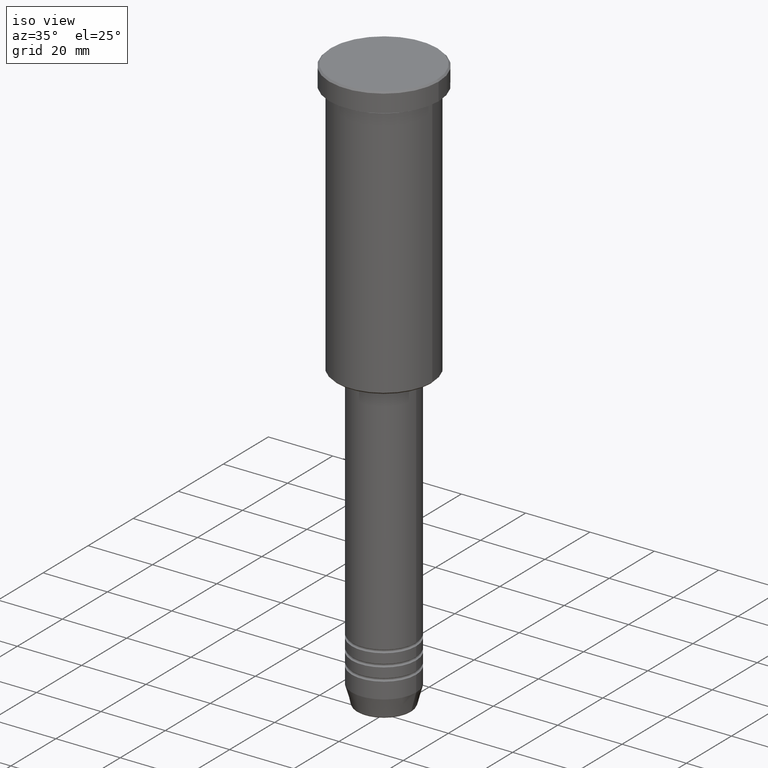
[diagram: clean part render]
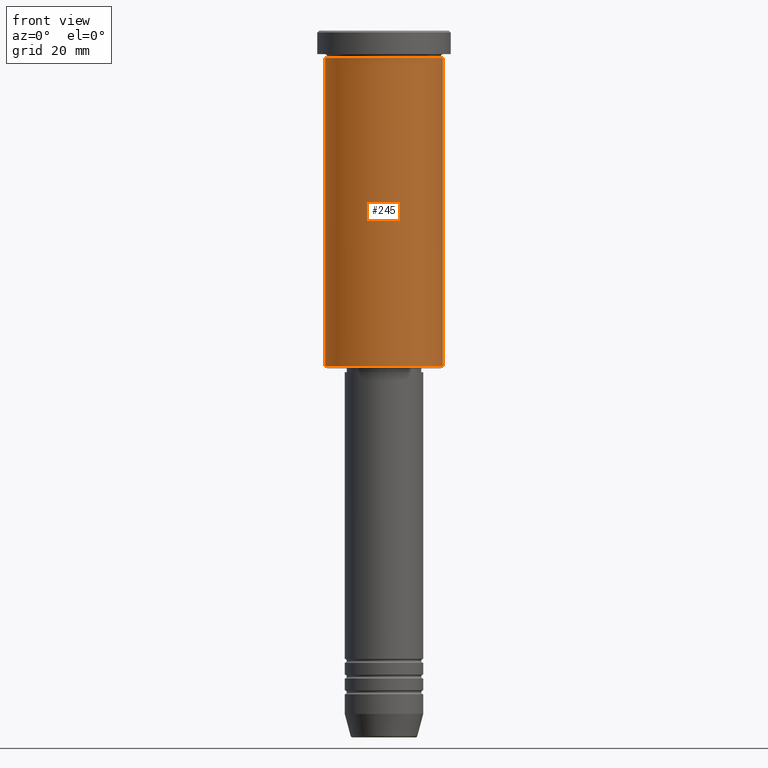
[diagram: tour spotlight — one face highlighted and labeled with its STEP entity id]
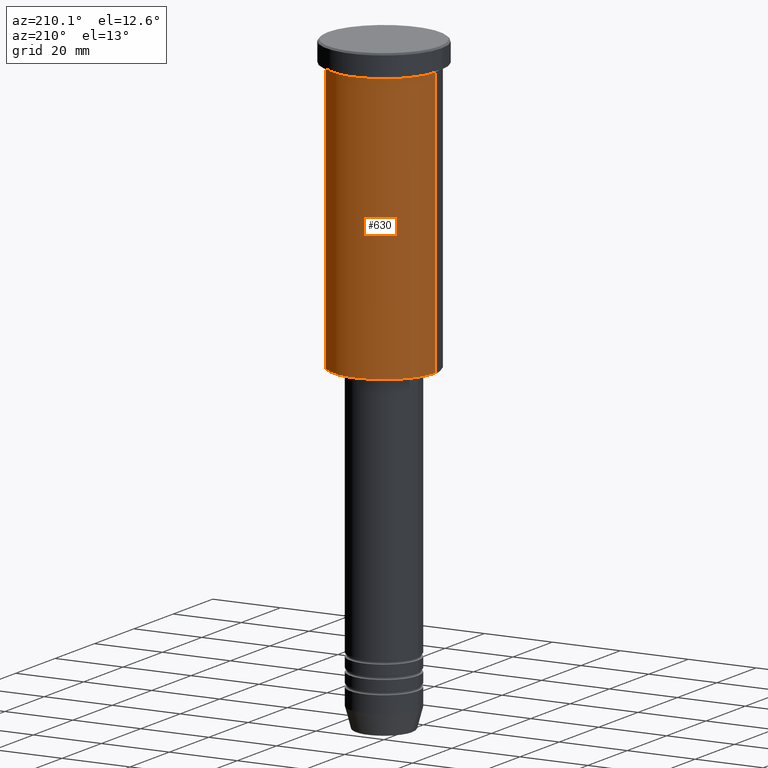
[diagram: tour spotlight — one face highlighted and labeled with its STEP entity id]
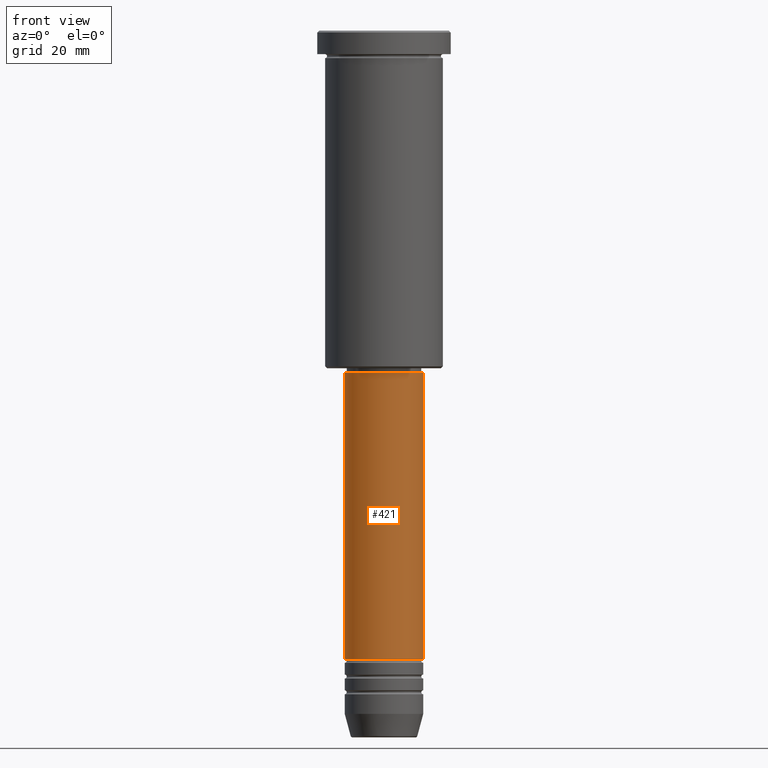
[diagram: tour spotlight — one face highlighted and labeled with its STEP entity id]
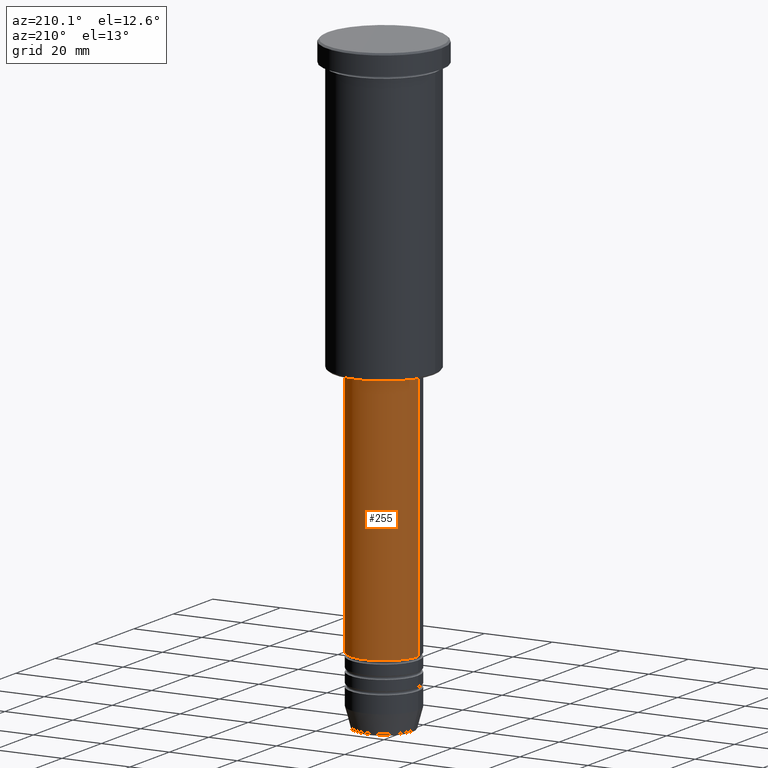
[diagram: tour spotlight — one face highlighted and labeled with its STEP entity id]
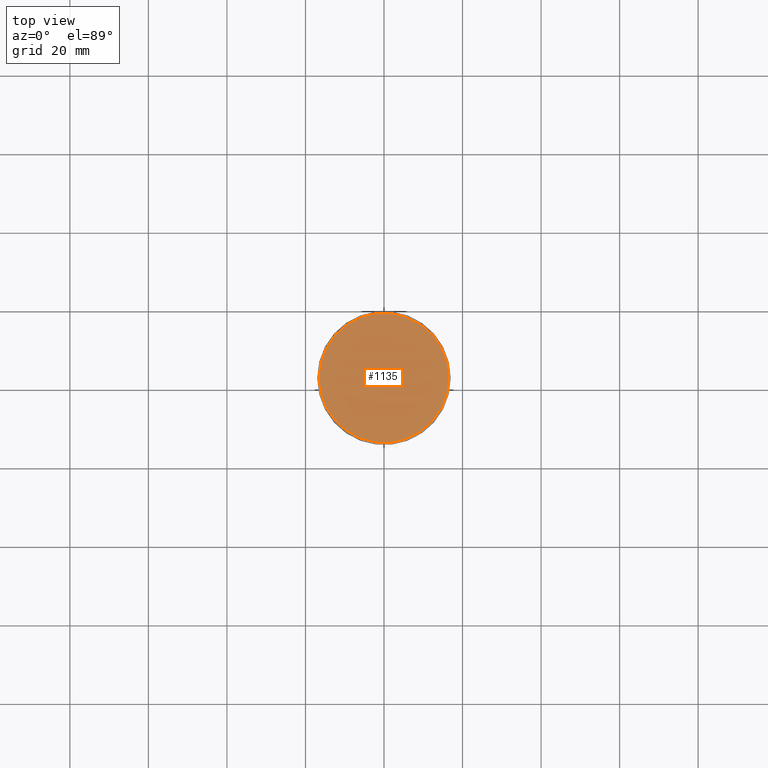
[diagram: tour spotlight — one face highlighted and labeled with its STEP entity id]
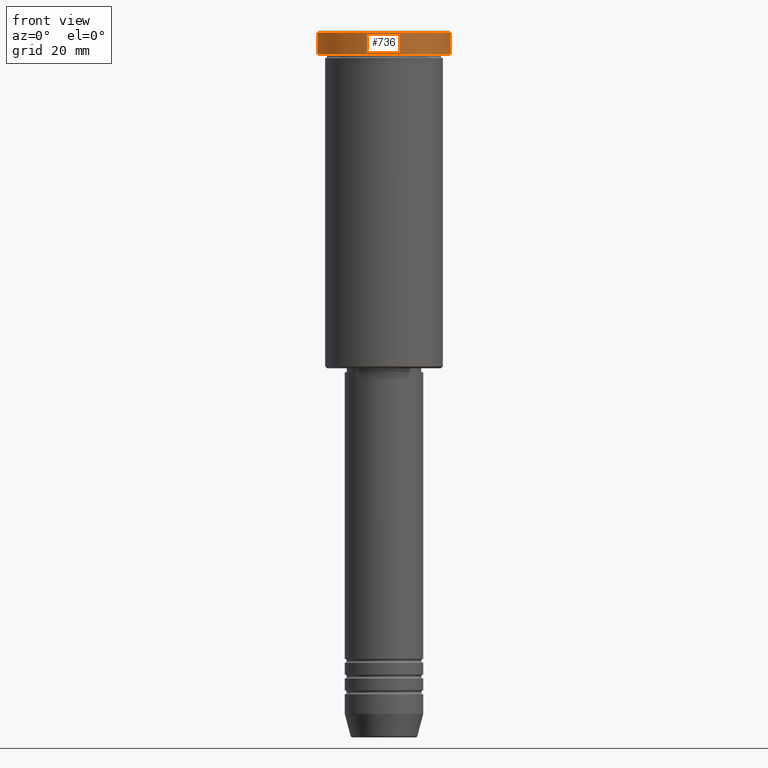
[diagram: tour spotlight — one face highlighted and labeled with its STEP entity id]
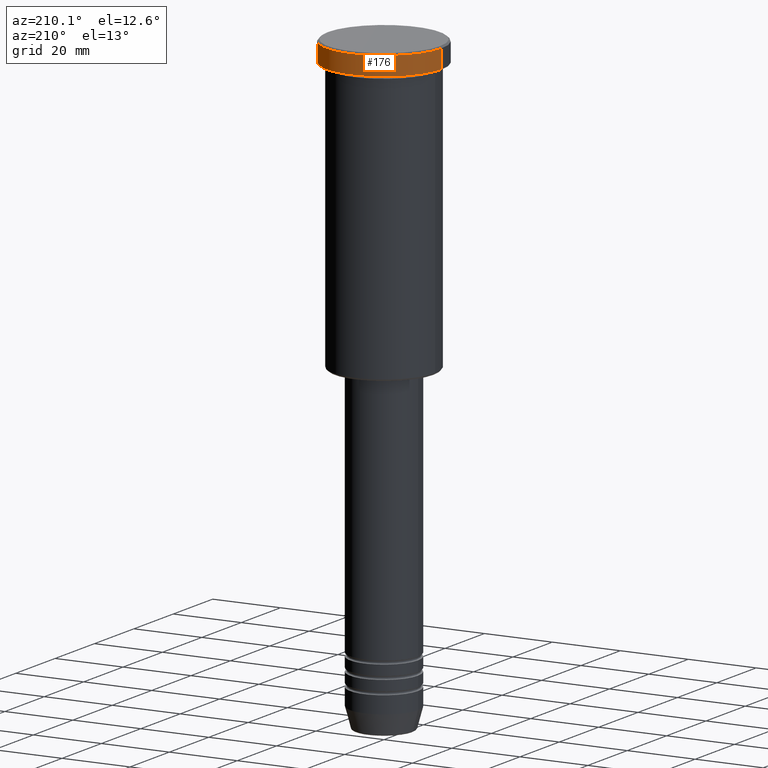
[diagram: tour spotlight — one face highlighted and labeled with its STEP entity id]
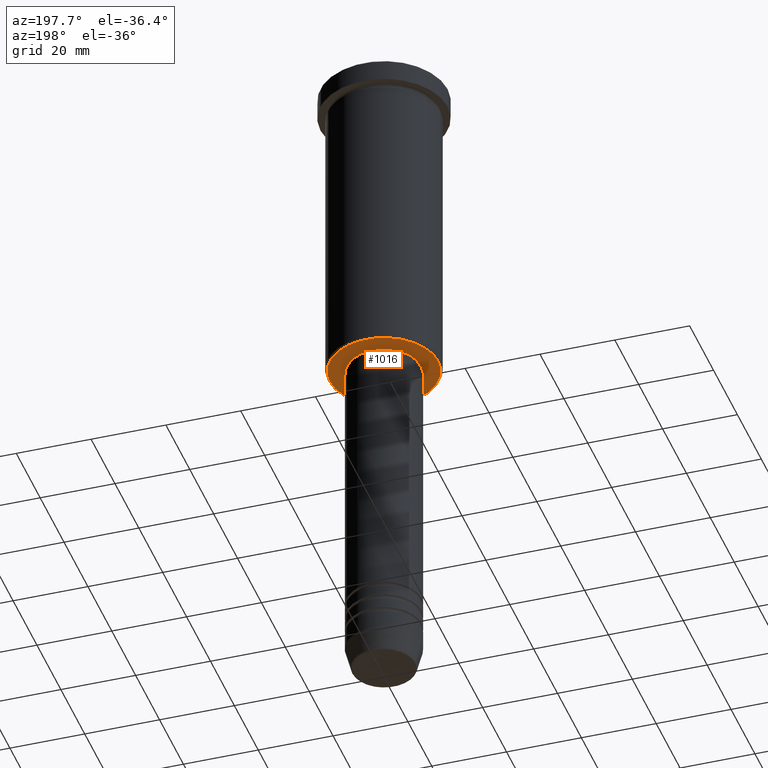
[diagram: tour spotlight — one face highlighted and labeled with its STEP entity id]
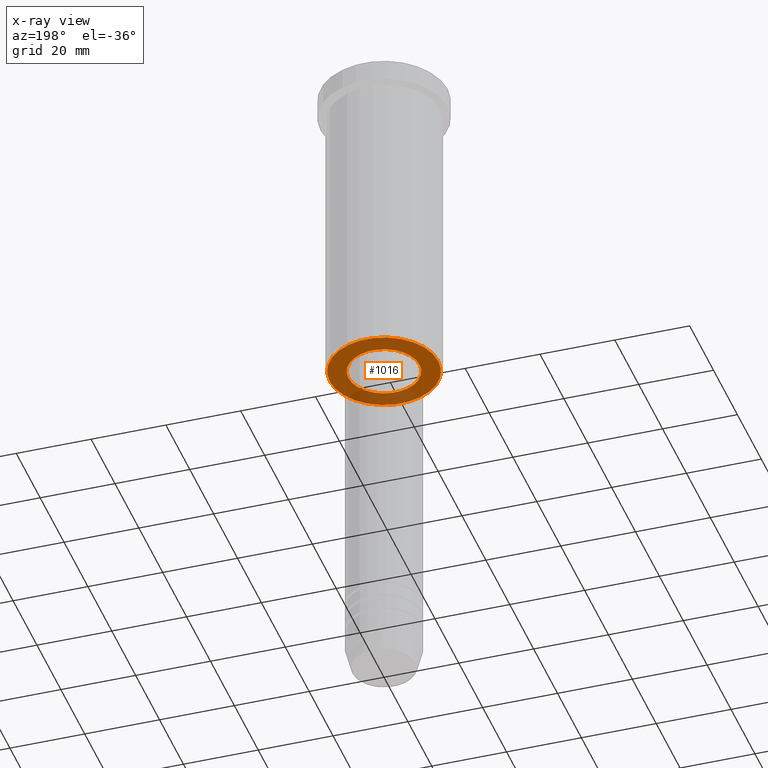
[diagram: x-ray of the same camera — body ghosted, this tour face saturated]
A machine part: a face-by-face anatomy tour. The part has 43 B-rep faces; the first image is the clean iso view, then the 8 largest visible faces are spotlighted one at a time (largest first), each with its STEP entity span.

Face 1 — front view, entity #245. In plain terms, the highlighted cylindrical surface (partial cylindrical patch) has radius 15 mm, axis along (-0, -0, 1).
Definition (entity closure, byte-faithful):
#47 = VERTEX_POINT ( 'NONE', #268 ) ;
#64 = FACE_OUTER_BOUND ( 'NONE', #892, .T. ) ;
#108 = DIRECTION ( 'NONE',  ( 1.000000000000000000, 0.000000000000000000, 0.000000000000000000 ) ) ;
#121 = DIRECTION ( 'NONE',  ( -0.000000000000000000, -0.000000000000000000, 1.000000000000000000 ) ) ;
#156 = VERTEX_POINT ( 'NONE', #426 ) ;
#161 = DIRECTION ( 'NONE',  ( -0.000000000000000000, -0.000000000000000000, 1.000000000000000000 ) ) ;
#202 = CARTESIAN_POINT ( 'NONE',  ( 15.00000000000000000, 0.000000000000000000, -85.49999999999998579 ) ) ;
#212 = AXIS2_PLACEMENT_3D ( 'NONE', #1048, #310, #572 ) ;
#220 = ORIENTED_EDGE ( 'NONE', *, *, #474, .F. ) ;
#245 = ADVANCED_FACE ( 'NONE', ( #64 ), #386, .T. ) ;
#246 = LINE ( 'NONE', #1069, #303 ) ;
#268 = CARTESIAN_POINT ( 'NONE',  ( -15.00000000000000000, 1.836970198721029589E-15, -85.49999999999998579 ) ) ;
#283 = VERTEX_POINT ( 'NONE', #202 ) ;
#303 = VECTOR ( 'NONE', #161, 1000.000000000000000 ) ;
#310 = DIRECTION ( 'NONE',  ( -0.000000000000000000, -0.000000000000000000, 1.000000000000000000 ) ) ;
#315 = ORIENTED_EDGE ( 'NONE', *, *, #954, .T. ) ;
#320 = AXIS2_PLACEMENT_3D ( 'NONE', #653, #770, #108 ) ;
#386 = CYLINDRICAL_SURFACE ( 'NONE', #320, 15.00000000000000000 ) ;
#388 = VECTOR ( 'NONE', #687, 1000.000000000000000 ) ;
#416 = VERTEX_POINT ( 'NONE', #849 ) ;
#426 = CARTESIAN_POINT ( 'NONE',  ( 15.00000000000000000, 0.000000000000000000, -6.999999999999995559 ) ) ;
#474 = EDGE_CURVE ( 'NONE', #416, #156, #1179, .T. ) ;
#480 = AXIS2_PLACEMENT_3D ( 'NONE', #575, #121, #1040 ) ;
#531 = ORIENTED_EDGE ( 'NONE', *, *, #1105, .T. ) ;
#572 = DIRECTION ( 'NONE',  ( -1.000000000000000000, 0.000000000000000000, 0.000000000000000000 ) ) ;
#575 = CARTESIAN_POINT ( 'NONE',  ( 0.000000000000000000, 0.000000000000000000, -6.999999999999995559 ) ) ;
#584 = EDGE_CURVE ( 'NONE', #47, #416, #246, .T. ) ;
#653 = CARTESIAN_POINT ( 'NONE',  ( 0.000000000000000000, 0.000000000000000000, 0.000000000000000000 ) ) ;
#687 = DIRECTION ( 'NONE',  ( -0.000000000000000000, -0.000000000000000000, 1.000000000000000000 ) ) ;
#770 = DIRECTION ( 'NONE',  ( -0.000000000000000000, -0.000000000000000000, 1.000000000000000000 ) ) ;
#823 = CIRCLE ( 'NONE', #212, 15.00000000000000000 ) ;
#849 = CARTESIAN_POINT ( 'NONE',  ( -15.00000000000000000, 1.836970198721029589E-15, -6.999999999999995559 ) ) ;
#871 = LINE ( 'NONE', #1132, #388 ) ;
#872 = ORIENTED_EDGE ( 'NONE', *, *, #584, .F. ) ;
#892 = EDGE_LOOP ( 'NONE', ( #872, #315, #531, #220 ) ) ;
#954 = EDGE_CURVE ( 'NONE', #47, #283, #823, .T. ) ;
#1040 = DIRECTION ( 'NONE',  ( 1.000000000000000000, 0.000000000000000000, 0.000000000000000000 ) ) ;
#1048 = CARTESIAN_POINT ( 'NONE',  ( 0.000000000000000000, 0.000000000000000000, -85.49999999999998579 ) ) ;
#1069 = CARTESIAN_POINT ( 'NONE',  ( -15.00000000000000000, 1.836970198721029589E-15, 0.000000000000000000 ) ) ;
#1105 = EDGE_CURVE ( 'NONE', #283, #156, #871, .T. ) ;
#1132 = CARTESIAN_POINT ( 'NONE',  ( 15.00000000000000000, 0.000000000000000000, 0.000000000000000000 ) ) ;
#1179 = CIRCLE ( 'NONE', #480, 15.00000000000000000 ) ;

Face 2 — auxiliary view, entity #630. In plain terms, the highlighted cylindrical surface (partial cylindrical patch) has radius 15 mm, axis along (-0, -0, 1).
Definition (entity closure, byte-faithful):
#47 = VERTEX_POINT ( 'NONE', #268 ) ;
#100 = AXIS2_PLACEMENT_3D ( 'NONE', #1081, #982, #878 ) ;
#154 = DIRECTION ( 'NONE',  ( -1.000000000000000000, 0.000000000000000000, 0.000000000000000000 ) ) ;
#156 = VERTEX_POINT ( 'NONE', #426 ) ;
#161 = DIRECTION ( 'NONE',  ( -0.000000000000000000, -0.000000000000000000, 1.000000000000000000 ) ) ;
#186 = EDGE_LOOP ( 'NONE', ( #395, #1138, #882, #1029 ) ) ;
#199 = CARTESIAN_POINT ( 'NONE',  ( 0.000000000000000000, 0.000000000000000000, -6.999999999999995559 ) ) ;
#202 = CARTESIAN_POINT ( 'NONE',  ( 15.00000000000000000, 0.000000000000000000, -85.49999999999998579 ) ) ;
#244 = EDGE_CURVE ( 'NONE', #283, #47, #606, .T. ) ;
#246 = LINE ( 'NONE', #1069, #303 ) ;
#248 = AXIS2_PLACEMENT_3D ( 'NONE', #1063, #972, #154 ) ;
#253 = EDGE_CURVE ( 'NONE', #156, #416, #400, .T. ) ;
#268 = CARTESIAN_POINT ( 'NONE',  ( -15.00000000000000000, 1.836970198721029589E-15, -85.49999999999998579 ) ) ;
#283 = VERTEX_POINT ( 'NONE', #202 ) ;
#303 = VECTOR ( 'NONE', #161, 1000.000000000000000 ) ;
#372 = DIRECTION ( 'NONE',  ( -0.000000000000000000, -0.000000000000000000, 1.000000000000000000 ) ) ;
#388 = VECTOR ( 'NONE', #687, 1000.000000000000000 ) ;
#395 = ORIENTED_EDGE ( 'NONE', *, *, #244, .T. ) ;
#400 = CIRCLE ( 'NONE', #904, 15.00000000000000000 ) ;
#416 = VERTEX_POINT ( 'NONE', #849 ) ;
#426 = CARTESIAN_POINT ( 'NONE',  ( 15.00000000000000000, 0.000000000000000000, -6.999999999999995559 ) ) ;
#561 = DIRECTION ( 'NONE',  ( 1.000000000000000000, 0.000000000000000000, 0.000000000000000000 ) ) ;
#584 = EDGE_CURVE ( 'NONE', #47, #416, #246, .T. ) ;
#606 = CIRCLE ( 'NONE', #248, 15.00000000000000000 ) ;
#630 = ADVANCED_FACE ( 'NONE', ( #891 ), #987, .T. ) ;
#687 = DIRECTION ( 'NONE',  ( -0.000000000000000000, -0.000000000000000000, 1.000000000000000000 ) ) ;
#849 = CARTESIAN_POINT ( 'NONE',  ( -15.00000000000000000, 1.836970198721029589E-15, -6.999999999999995559 ) ) ;
#871 = LINE ( 'NONE', #1132, #388 ) ;
#878 = DIRECTION ( 'NONE',  ( 1.000000000000000000, 0.000000000000000000, 0.000000000000000000 ) ) ;
#882 = ORIENTED_EDGE ( 'NONE', *, *, #253, .F. ) ;
#891 = FACE_OUTER_BOUND ( 'NONE', #186, .T. ) ;
#904 = AXIS2_PLACEMENT_3D ( 'NONE', #199, #372, #561 ) ;
#972 = DIRECTION ( 'NONE',  ( -0.000000000000000000, -0.000000000000000000, 1.000000000000000000 ) ) ;
#982 = DIRECTION ( 'NONE',  ( -0.000000000000000000, -0.000000000000000000, 1.000000000000000000 ) ) ;
#987 = CYLINDRICAL_SURFACE ( 'NONE', #100, 15.00000000000000000 ) ;
#1029 = ORIENTED_EDGE ( 'NONE', *, *, #1105, .F. ) ;
#1063 = CARTESIAN_POINT ( 'NONE',  ( 0.000000000000000000, 0.000000000000000000, -85.49999999999998579 ) ) ;
#1069 = CARTESIAN_POINT ( 'NONE',  ( -15.00000000000000000, 1.836970198721029589E-15, 0.000000000000000000 ) ) ;
#1081 = CARTESIAN_POINT ( 'NONE',  ( 0.000000000000000000, 0.000000000000000000, 0.000000000000000000 ) ) ;
#1105 = EDGE_CURVE ( 'NONE', #283, #156, #871, .T. ) ;
#1132 = CARTESIAN_POINT ( 'NONE',  ( 15.00000000000000000, 0.000000000000000000, 0.000000000000000000 ) ) ;
#1138 = ORIENTED_EDGE ( 'NONE', *, *, #584, .T. ) ;

Face 3 — front view, entity #421. In plain terms, the highlighted cylindrical surface (partial cylindrical patch) has radius 10 mm, axis along (-0, -0, 1).
Definition (entity closure, byte-faithful):
#29 = CYLINDRICAL_SURFACE ( 'NONE', #265, 10.00000000000000000 ) ;
#45 = LINE ( 'NONE', #858, #664 ) ;
#75 = AXIS2_PLACEMENT_3D ( 'NONE', #1005, #185, #873 ) ;
#88 = VERTEX_POINT ( 'NONE', #109 ) ;
#109 = CARTESIAN_POINT ( 'NONE',  ( 9.999999999999998224, 0.000000000000000000, -87.00000000000002842 ) ) ;
#132 = DIRECTION ( 'NONE',  ( -0.000000000000000000, -0.000000000000000000, 1.000000000000000000 ) ) ;
#142 = EDGE_LOOP ( 'NONE', ( #706, #433, #497, #746 ) ) ;
#185 = DIRECTION ( 'NONE',  ( -0.000000000000000000, -0.000000000000000000, 1.000000000000000000 ) ) ;
#265 = AXIS2_PLACEMENT_3D ( 'NONE', #953, #132, #590 ) ;
#389 = EDGE_CURVE ( 'NONE', #1051, #88, #1104, .T. ) ;
#394 = VERTEX_POINT ( 'NONE', #748 ) ;
#397 = DIRECTION ( 'NONE',  ( 1.000000000000000000, 0.000000000000000000, 0.000000000000000000 ) ) ;
#413 = FACE_OUTER_BOUND ( 'NONE', #142, .T. ) ;
#421 = ADVANCED_FACE ( 'NONE', ( #413 ), #29, .T. ) ;
#433 = ORIENTED_EDGE ( 'NONE', *, *, #456, .T. ) ;
#456 = EDGE_CURVE ( 'NONE', #733, #394, #939, .T. ) ;
#475 = LINE ( 'NONE', #1129, #866 ) ;
#481 = CARTESIAN_POINT ( 'NONE',  ( -9.999999999999998224, 1.224646799147353256E-15, -87.00000000000002842 ) ) ;
#488 = DIRECTION ( 'NONE',  ( -0.000000000000000000, -0.000000000000000000, 1.000000000000000000 ) ) ;
#489 = EDGE_CURVE ( 'NONE', #394, #88, #45, .T. ) ;
#497 = ORIENTED_EDGE ( 'NONE', *, *, #489, .T. ) ;
#524 = AXIS2_PLACEMENT_3D ( 'NONE', #1130, #1028, #397 ) ;
#590 = DIRECTION ( 'NONE',  ( 1.000000000000000000, 0.000000000000000000, 0.000000000000000000 ) ) ;
#640 = CARTESIAN_POINT ( 'NONE',  ( -10.00000000000000178, 1.224646799147353454E-15, -160.0000000000000000 ) ) ;
#661 = DIRECTION ( 'NONE',  ( -0.000000000000000000, -0.000000000000000000, 1.000000000000000000 ) ) ;
#664 = VECTOR ( 'NONE', #488, 1000.000000000000000 ) ;
#706 = ORIENTED_EDGE ( 'NONE', *, *, #896, .F. ) ;
#733 = VERTEX_POINT ( 'NONE', #640 ) ;
#746 = ORIENTED_EDGE ( 'NONE', *, *, #389, .F. ) ;
#748 = CARTESIAN_POINT ( 'NONE',  ( 10.00000000000000178, 0.000000000000000000, -160.0000000000000000 ) ) ;
#858 = CARTESIAN_POINT ( 'NONE',  ( 10.00000000000000000, 0.000000000000000000, 0.000000000000000000 ) ) ;
#866 = VECTOR ( 'NONE', #661, 1000.000000000000000 ) ;
#873 = DIRECTION ( 'NONE',  ( 1.000000000000000000, 0.000000000000000000, 0.000000000000000000 ) ) ;
#896 = EDGE_CURVE ( 'NONE', #733, #1051, #475, .T. ) ;
#939 = CIRCLE ( 'NONE', #524, 10.00000000000000178 ) ;
#953 = CARTESIAN_POINT ( 'NONE',  ( 0.000000000000000000, 0.000000000000000000, 0.000000000000000000 ) ) ;
#1005 = CARTESIAN_POINT ( 'NONE',  ( 0.000000000000000000, 0.000000000000000000, -87.00000000000002842 ) ) ;
#1028 = DIRECTION ( 'NONE',  ( -0.000000000000000000, -0.000000000000000000, 1.000000000000000000 ) ) ;
#1051 = VERTEX_POINT ( 'NONE', #481 ) ;
#1104 = CIRCLE ( 'NONE', #75, 9.999999999999998224 ) ;
#1129 = CARTESIAN_POINT ( 'NONE',  ( -10.00000000000000000, 1.224646799147353256E-15, 0.000000000000000000 ) ) ;
#1130 = CARTESIAN_POINT ( 'NONE',  ( 0.000000000000000000, 0.000000000000000000, -160.0000000000000000 ) ) ;

Face 4 — auxiliary view, entity #255. In plain terms, the highlighted cylindrical surface (partial cylindrical patch) has radius 10 mm, axis along (-0, -0, 1).
Definition (entity closure, byte-faithful):
#5 = CARTESIAN_POINT ( 'NONE',  ( 0.000000000000000000, 0.000000000000000000, 0.000000000000000000 ) ) ;
#45 = LINE ( 'NONE', #858, #664 ) ;
#88 = VERTEX_POINT ( 'NONE', #109 ) ;
#95 = ORIENTED_EDGE ( 'NONE', *, *, #295, .F. ) ;
#109 = CARTESIAN_POINT ( 'NONE',  ( 9.999999999999998224, 0.000000000000000000, -87.00000000000002842 ) ) ;
#136 = EDGE_CURVE ( 'NONE', #394, #733, #357, .T. ) ;
#164 = CARTESIAN_POINT ( 'NONE',  ( 0.000000000000000000, 0.000000000000000000, -160.0000000000000000 ) ) ;
#255 = ADVANCED_FACE ( 'NONE', ( #919 ), #932, .T. ) ;
#292 = CARTESIAN_POINT ( 'NONE',  ( 0.000000000000000000, 0.000000000000000000, -87.00000000000002842 ) ) ;
#295 = EDGE_CURVE ( 'NONE', #88, #1051, #500, .T. ) ;
#327 = ORIENTED_EDGE ( 'NONE', *, *, #896, .T. ) ;
#357 = CIRCLE ( 'NONE', #624, 10.00000000000000178 ) ;
#379 = ORIENTED_EDGE ( 'NONE', *, *, #136, .T. ) ;
#394 = VERTEX_POINT ( 'NONE', #748 ) ;
#472 = DIRECTION ( 'NONE',  ( -0.000000000000000000, -0.000000000000000000, 1.000000000000000000 ) ) ;
#475 = LINE ( 'NONE', #1129, #866 ) ;
#481 = CARTESIAN_POINT ( 'NONE',  ( -9.999999999999998224, 1.224646799147353256E-15, -87.00000000000002842 ) ) ;
#488 = DIRECTION ( 'NONE',  ( -0.000000000000000000, -0.000000000000000000, 1.000000000000000000 ) ) ;
#489 = EDGE_CURVE ( 'NONE', #394, #88, #45, .T. ) ;
#500 = CIRCLE ( 'NONE', #699, 9.999999999999998224 ) ;
#624 = AXIS2_PLACEMENT_3D ( 'NONE', #164, #1002, #1155 ) ;
#640 = CARTESIAN_POINT ( 'NONE',  ( -10.00000000000000178, 1.224646799147353454E-15, -160.0000000000000000 ) ) ;
#654 = DIRECTION ( 'NONE',  ( -0.000000000000000000, -0.000000000000000000, 1.000000000000000000 ) ) ;
#661 = DIRECTION ( 'NONE',  ( -0.000000000000000000, -0.000000000000000000, 1.000000000000000000 ) ) ;
#664 = VECTOR ( 'NONE', #488, 1000.000000000000000 ) ;
#683 = AXIS2_PLACEMENT_3D ( 'NONE', #5, #472, #1084 ) ;
#699 = AXIS2_PLACEMENT_3D ( 'NONE', #292, #654, #998 ) ;
#722 = EDGE_LOOP ( 'NONE', ( #379, #327, #95, #1041 ) ) ;
#733 = VERTEX_POINT ( 'NONE', #640 ) ;
#748 = CARTESIAN_POINT ( 'NONE',  ( 10.00000000000000178, 0.000000000000000000, -160.0000000000000000 ) ) ;
#858 = CARTESIAN_POINT ( 'NONE',  ( 10.00000000000000000, 0.000000000000000000, 0.000000000000000000 ) ) ;
#866 = VECTOR ( 'NONE', #661, 1000.000000000000000 ) ;
#896 = EDGE_CURVE ( 'NONE', #733, #1051, #475, .T. ) ;
#919 = FACE_OUTER_BOUND ( 'NONE', #722, .T. ) ;
#932 = CYLINDRICAL_SURFACE ( 'NONE', #683, 10.00000000000000000 ) ;
#998 = DIRECTION ( 'NONE',  ( 1.000000000000000000, 0.000000000000000000, 0.000000000000000000 ) ) ;
#1002 = DIRECTION ( 'NONE',  ( -0.000000000000000000, -0.000000000000000000, 1.000000000000000000 ) ) ;
#1041 = ORIENTED_EDGE ( 'NONE', *, *, #489, .F. ) ;
#1051 = VERTEX_POINT ( 'NONE', #481 ) ;
#1084 = DIRECTION ( 'NONE',  ( 1.000000000000000000, 0.000000000000000000, 0.000000000000000000 ) ) ;
#1129 = CARTESIAN_POINT ( 'NONE',  ( -10.00000000000000000, 1.224646799147353256E-15, 0.000000000000000000 ) ) ;
#1155 = DIRECTION ( 'NONE',  ( 1.000000000000000000, 0.000000000000000000, 0.000000000000000000 ) ) ;

Face 5 — top view, entity #1135. In plain terms, the highlighted planar face has unit normal (0, -0, 1).
Definition (entity closure, byte-faithful):
#46 = VERTEX_POINT ( 'NONE', #1088 ) ;
#77 = AXIS2_PLACEMENT_3D ( 'NONE', #467, #933, #276 ) ;
#115 = CARTESIAN_POINT ( 'NONE',  ( 0.000000000000000000, 0.000000000000000000, 0.000000000000000000 ) ) ;
#123 = VERTEX_POINT ( 'NONE', #451 ) ;
#165 = FACE_OUTER_BOUND ( 'NONE', #236, .T. ) ;
#236 = EDGE_LOOP ( 'NONE', ( #567, #1149 ) ) ;
#276 = DIRECTION ( 'NONE',  ( 1.000000000000000000, 0.000000000000000000, 0.000000000000000000 ) ) ;
#340 = DIRECTION ( 'NONE',  ( 0.000000000000000000, -0.000000000000000000, 1.000000000000000000 ) ) ;
#403 = AXIS2_PLACEMENT_3D ( 'NONE', #115, #951, #853 ) ;
#451 = CARTESIAN_POINT ( 'NONE',  ( 16.49999999999995737, 2.051283388571814520E-15, 0.000000000000000000 ) ) ;
#467 = CARTESIAN_POINT ( 'NONE',  ( 0.000000000000000000, 0.000000000000000000, 0.000000000000000000 ) ) ;
#514 = EDGE_CURVE ( 'NONE', #46, #123, #996, .T. ) ;
#567 = ORIENTED_EDGE ( 'NONE', *, *, #514, .T. ) ;
#754 = EDGE_CURVE ( 'NONE', #123, #46, #800, .T. ) ;
#800 = CIRCLE ( 'NONE', #77, 16.49999999999995737 ) ;
#801 = AXIS2_PLACEMENT_3D ( 'NONE', #1072, #340, #1150 ) ;
#853 = DIRECTION ( 'NONE',  ( 1.000000000000000000, 0.000000000000000000, 0.000000000000000000 ) ) ;
#933 = DIRECTION ( 'NONE',  ( -0.000000000000000000, -0.000000000000000000, 1.000000000000000000 ) ) ;
#951 = DIRECTION ( 'NONE',  ( -0.000000000000000000, -0.000000000000000000, 1.000000000000000000 ) ) ;
#996 = CIRCLE ( 'NONE', #403, 16.49999999999995737 ) ;
#1072 = CARTESIAN_POINT ( 'NONE',  ( 0.000000000000000000, 0.000000000000000000, 0.000000000000000000 ) ) ;
#1088 = CARTESIAN_POINT ( 'NONE',  ( -16.49999999999995737, 0.000000000000000000, 0.000000000000000000 ) ) ;
#1135 = ADVANCED_FACE ( 'NONE', ( #165 ), #1142, .T. ) ;
#1142 = PLANE ( 'NONE',  #801 ) ;
#1149 = ORIENTED_EDGE ( 'NONE', *, *, #754, .T. ) ;
#1150 = DIRECTION ( 'NONE',  ( 1.000000000000000000, 0.000000000000000000, 0.000000000000000000 ) ) ;

Face 6 — front view, entity #736. In plain terms, the highlighted cylindrical surface (partial cylindrical patch) has radius 17 mm, axis along (-0, -0, 1).
Definition (entity closure, byte-faithful):
#4 = EDGE_CURVE ( 'NONE', #519, #802, #718, .T. ) ;
#57 = CIRCLE ( 'NONE', #957, 17.00000000000000000 ) ;
#106 = CARTESIAN_POINT ( 'NONE',  ( 17.00000000000000000, 0.000000000000000000, 0.000000000000000000 ) ) ;
#111 = EDGE_LOOP ( 'NONE', ( #735, #876, #409, #1065 ) ) ;
#158 = AXIS2_PLACEMENT_3D ( 'NONE', #911, #1180, #1089 ) ;
#197 = DIRECTION ( 'NONE',  ( 1.000000000000000000, 0.000000000000000000, 0.000000000000000000 ) ) ;
#223 = VERTEX_POINT ( 'NONE', #504 ) ;
#240 = VERTEX_POINT ( 'NONE', #330 ) ;
#286 = VECTOR ( 'NONE', #671, 1000.000000000000000 ) ;
#300 = AXIS2_PLACEMENT_3D ( 'NONE', #418, #529, #712 ) ;
#330 = CARTESIAN_POINT ( 'NONE',  ( 17.00000000000000000, 0.000000000000000000, -5.999999999999994671 ) ) ;
#332 = EDGE_CURVE ( 'NONE', #223, #240, #57, .T. ) ;
#378 = DIRECTION ( 'NONE',  ( -0.000000000000000000, -0.000000000000000000, 1.000000000000000000 ) ) ;
#382 = EDGE_CURVE ( 'NONE', #240, #519, #930, .T. ) ;
#409 = ORIENTED_EDGE ( 'NONE', *, *, #382, .T. ) ;
#418 = CARTESIAN_POINT ( 'NONE',  ( 0.000000000000000000, 0.000000000000000000, -0.5000000000000213163 ) ) ;
#454 = CYLINDRICAL_SURFACE ( 'NONE', #158, 17.00000000000000000 ) ;
#457 = EDGE_CURVE ( 'NONE', #223, #802, #867, .T. ) ;
#471 = DIRECTION ( 'NONE',  ( -0.000000000000000000, -0.000000000000000000, 1.000000000000000000 ) ) ;
#504 = CARTESIAN_POINT ( 'NONE',  ( -17.00000000000000000, 2.081899558550500280E-15, -5.999999999999994671 ) ) ;
#519 = VERTEX_POINT ( 'NONE', #753 ) ;
#529 = DIRECTION ( 'NONE',  ( 0.000000000000000000, 0.000000000000000000, -1.000000000000000000 ) ) ;
#545 = CARTESIAN_POINT ( 'NONE',  ( -17.00000000000000000, 2.081899558550500280E-15, -0.5000000000000213163 ) ) ;
#580 = CARTESIAN_POINT ( 'NONE',  ( -17.00000000000000000, 2.081899558550500280E-15, 0.000000000000000000 ) ) ;
#608 = VECTOR ( 'NONE', #378, 1000.000000000000000 ) ;
#671 = DIRECTION ( 'NONE',  ( -0.000000000000000000, -0.000000000000000000, 1.000000000000000000 ) ) ;
#712 = DIRECTION ( 'NONE',  ( 1.000000000000000000, 0.000000000000000000, 0.000000000000000000 ) ) ;
#718 = CIRCLE ( 'NONE', #300, 17.00000000000000000 ) ;
#719 = CARTESIAN_POINT ( 'NONE',  ( 0.000000000000000000, 0.000000000000000000, -5.999999999999994671 ) ) ;
#735 = ORIENTED_EDGE ( 'NONE', *, *, #457, .F. ) ;
#736 = ADVANCED_FACE ( 'NONE', ( #916 ), #454, .T. ) ;
#753 = CARTESIAN_POINT ( 'NONE',  ( 17.00000000000000000, 0.000000000000000000, -0.5000000000000213163 ) ) ;
#802 = VERTEX_POINT ( 'NONE', #545 ) ;
#867 = LINE ( 'NONE', #580, #286 ) ;
#876 = ORIENTED_EDGE ( 'NONE', *, *, #332, .T. ) ;
#911 = CARTESIAN_POINT ( 'NONE',  ( 0.000000000000000000, 0.000000000000000000, 0.000000000000000000 ) ) ;
#916 = FACE_OUTER_BOUND ( 'NONE', #111, .T. ) ;
#930 = LINE ( 'NONE', #106, #608 ) ;
#957 = AXIS2_PLACEMENT_3D ( 'NONE', #719, #471, #197 ) ;
#1065 = ORIENTED_EDGE ( 'NONE', *, *, #4, .T. ) ;
#1089 = DIRECTION ( 'NONE',  ( 1.000000000000000000, 0.000000000000000000, 0.000000000000000000 ) ) ;
#1180 = DIRECTION ( 'NONE',  ( -0.000000000000000000, -0.000000000000000000, 1.000000000000000000 ) ) ;

Face 7 — auxiliary view, entity #176. In plain terms, the highlighted cylindrical surface (partial cylindrical patch) has radius 17 mm, axis along (-0, -0, 1).
Definition (entity closure, byte-faithful):
#14 = CARTESIAN_POINT ( 'NONE',  ( 0.000000000000000000, 0.000000000000000000, -0.5000000000000213163 ) ) ;
#54 = DIRECTION ( 'NONE',  ( 1.000000000000000000, 0.000000000000000000, 0.000000000000000000 ) ) ;
#106 = CARTESIAN_POINT ( 'NONE',  ( 17.00000000000000000, 0.000000000000000000, 0.000000000000000000 ) ) ;
#168 = EDGE_LOOP ( 'NONE', ( #795, #414, #672, #890 ) ) ;
#174 = CIRCLE ( 'NONE', #588, 17.00000000000000000 ) ;
#176 = ADVANCED_FACE ( 'NONE', ( #1066 ), #348, .T. ) ;
#223 = VERTEX_POINT ( 'NONE', #504 ) ;
#227 = AXIS2_PLACEMENT_3D ( 'NONE', #241, #709, #976 ) ;
#240 = VERTEX_POINT ( 'NONE', #330 ) ;
#241 = CARTESIAN_POINT ( 'NONE',  ( 0.000000000000000000, 0.000000000000000000, 0.000000000000000000 ) ) ;
#286 = VECTOR ( 'NONE', #671, 1000.000000000000000 ) ;
#330 = CARTESIAN_POINT ( 'NONE',  ( 17.00000000000000000, 0.000000000000000000, -5.999999999999994671 ) ) ;
#333 = EDGE_CURVE ( 'NONE', #802, #519, #174, .T. ) ;
#348 = CYLINDRICAL_SURFACE ( 'NONE', #227, 17.00000000000000000 ) ;
#378 = DIRECTION ( 'NONE',  ( -0.000000000000000000, -0.000000000000000000, 1.000000000000000000 ) ) ;
#382 = EDGE_CURVE ( 'NONE', #240, #519, #930, .T. ) ;
#414 = ORIENTED_EDGE ( 'NONE', *, *, #457, .T. ) ;
#457 = EDGE_CURVE ( 'NONE', #223, #802, #867, .T. ) ;
#504 = CARTESIAN_POINT ( 'NONE',  ( -17.00000000000000000, 2.081899558550500280E-15, -5.999999999999994671 ) ) ;
#519 = VERTEX_POINT ( 'NONE', #753 ) ;
#545 = CARTESIAN_POINT ( 'NONE',  ( -17.00000000000000000, 2.081899558550500280E-15, -0.5000000000000213163 ) ) ;
#554 = DIRECTION ( 'NONE',  ( 0.000000000000000000, 0.000000000000000000, -1.000000000000000000 ) ) ;
#580 = CARTESIAN_POINT ( 'NONE',  ( -17.00000000000000000, 2.081899558550500280E-15, 0.000000000000000000 ) ) ;
#588 = AXIS2_PLACEMENT_3D ( 'NONE', #14, #554, #924 ) ;
#608 = VECTOR ( 'NONE', #378, 1000.000000000000000 ) ;
#666 = EDGE_CURVE ( 'NONE', #240, #223, #1107, .T. ) ;
#671 = DIRECTION ( 'NONE',  ( -0.000000000000000000, -0.000000000000000000, 1.000000000000000000 ) ) ;
#672 = ORIENTED_EDGE ( 'NONE', *, *, #333, .T. ) ;
#709 = DIRECTION ( 'NONE',  ( -0.000000000000000000, -0.000000000000000000, 1.000000000000000000 ) ) ;
#753 = CARTESIAN_POINT ( 'NONE',  ( 17.00000000000000000, 0.000000000000000000, -0.5000000000000213163 ) ) ;
#795 = ORIENTED_EDGE ( 'NONE', *, *, #666, .T. ) ;
#802 = VERTEX_POINT ( 'NONE', #545 ) ;
#845 = AXIS2_PLACEMENT_3D ( 'NONE', #1157, #1076, #54 ) ;
#867 = LINE ( 'NONE', #580, #286 ) ;
#890 = ORIENTED_EDGE ( 'NONE', *, *, #382, .F. ) ;
#924 = DIRECTION ( 'NONE',  ( 1.000000000000000000, 0.000000000000000000, 0.000000000000000000 ) ) ;
#930 = LINE ( 'NONE', #106, #608 ) ;
#976 = DIRECTION ( 'NONE',  ( 1.000000000000000000, 0.000000000000000000, 0.000000000000000000 ) ) ;
#1066 = FACE_OUTER_BOUND ( 'NONE', #168, .T. ) ;
#1076 = DIRECTION ( 'NONE',  ( -0.000000000000000000, -0.000000000000000000, 1.000000000000000000 ) ) ;
#1107 = CIRCLE ( 'NONE', #845, 17.00000000000000000 ) ;
#1157 = CARTESIAN_POINT ( 'NONE',  ( 0.000000000000000000, 0.000000000000000000, -5.999999999999994671 ) ) ;

Face 8 — auxiliary view, entity #1016. An x-ray twin of the same camera follows (body ghosted, this face saturated) — the face is partly hidden behind the body. In plain terms, the highlighted planar face has unit normal (0, 0, -1).
Definition (entity closure, byte-faithful):
#9 = CARTESIAN_POINT ( 'NONE',  ( 0.000000000000000000, 0.000000000000000000, -86.00000000000000000 ) ) ;
#28 = DIRECTION ( 'NONE',  ( 1.000000000000000000, 0.000000000000000000, 0.000000000000000000 ) ) ;
#39 = AXIS2_PLACEMENT_3D ( 'NONE', #559, #1004, #184 ) ;
#51 = CARTESIAN_POINT ( 'NONE',  ( 9.500000000000001776, 0.000000000000000000, -86.00000000000000000 ) ) ;
#59 = CARTESIAN_POINT ( 'NONE',  ( 0.000000000000000000, 0.000000000000000000, -86.00000000000000000 ) ) ;
#117 = CIRCLE ( 'NONE', #503, 9.500000000000001776 ) ;
#184 = DIRECTION ( 'NONE',  ( -1.000000000000000000, 0.000000000000000000, 0.000000000000000000 ) ) ;
#224 = CARTESIAN_POINT ( 'NONE',  ( 0.000000000000000000, 0.000000000000000000, -86.00000000000000000 ) ) ;
#249 = CIRCLE ( 'NONE', #1090, 14.49999999999998401 ) ;
#306 = CIRCLE ( 'NONE', #464, 9.500000000000001776 ) ;
#316 = EDGE_CURVE ( 'NONE', #428, #1099, #249, .T. ) ;
#370 = DIRECTION ( 'NONE',  ( -1.000000000000000000, 0.000000000000000000, 0.000000000000000000 ) ) ;
#396 = DIRECTION ( 'NONE',  ( 0.000000000000000000, 0.000000000000000000, -1.000000000000000000 ) ) ;
#427 = DIRECTION ( 'NONE',  ( -0.000000000000000000, -0.000000000000000000, 1.000000000000000000 ) ) ;
#428 = VERTEX_POINT ( 'NONE', #1114 ) ;
#437 = CIRCLE ( 'NONE', #39, 14.49999999999998401 ) ;
#455 = DIRECTION ( 'NONE',  ( 0.000000000000000000, 0.000000000000000000, -1.000000000000000000 ) ) ;
#464 = AXIS2_PLACEMENT_3D ( 'NONE', #224, #1110, #28 ) ;
#478 = ORIENTED_EDGE ( 'NONE', *, *, #991, .T. ) ;
#503 = AXIS2_PLACEMENT_3D ( 'NONE', #59, #427, #889 ) ;
#550 = ORIENTED_EDGE ( 'NONE', *, *, #316, .T. ) ;
#559 = CARTESIAN_POINT ( 'NONE',  ( 0.000000000000000000, 0.000000000000000000, -86.00000000000000000 ) ) ;
#609 = AXIS2_PLACEMENT_3D ( 'NONE', #766, #396, #1038 ) ;
#610 = EDGE_LOOP ( 'NONE', ( #715, #478 ) ) ;
#648 = EDGE_LOOP ( 'NONE', ( #550, #950 ) ) ;
#670 = PLANE ( 'NONE',  #609 ) ;
#678 = VERTEX_POINT ( 'NONE', #1134 ) ;
#704 = CARTESIAN_POINT ( 'NONE',  ( -14.49999999999998401, 1.806354028742345013E-15, -86.00000000000000000 ) ) ;
#715 = ORIENTED_EDGE ( 'NONE', *, *, #1109, .T. ) ;
#743 = FACE_OUTER_BOUND ( 'NONE', #648, .T. ) ;
#766 = CARTESIAN_POINT ( 'NONE',  ( 0.000000000000000000, 15.00000000000000000, -86.00000000000000000 ) ) ;
#779 = EDGE_CURVE ( 'NONE', #1099, #428, #437, .T. ) ;
#889 = DIRECTION ( 'NONE',  ( 1.000000000000000000, 0.000000000000000000, 0.000000000000000000 ) ) ;
#950 = ORIENTED_EDGE ( 'NONE', *, *, #779, .T. ) ;
#991 = EDGE_CURVE ( 'NONE', #678, #1112, #306, .T. ) ;
#1004 = DIRECTION ( 'NONE',  ( 0.000000000000000000, 0.000000000000000000, -1.000000000000000000 ) ) ;
#1016 = ADVANCED_FACE ( 'NONE', ( #743, #1043 ), #670, .T. ) ;
#1038 = DIRECTION ( 'NONE',  ( -1.000000000000000000, 0.000000000000000000, -0.000000000000000000 ) ) ;
#1043 = FACE_BOUND ( 'NONE', #610, .T. ) ;
#1090 = AXIS2_PLACEMENT_3D ( 'NONE', #9, #455, #370 ) ;
#1099 = VERTEX_POINT ( 'NONE', #704 ) ;
#1109 = EDGE_CURVE ( 'NONE', #1112, #678, #117, .T. ) ;
#1110 = DIRECTION ( 'NONE',  ( -0.000000000000000000, -0.000000000000000000, 1.000000000000000000 ) ) ;
#1112 = VERTEX_POINT ( 'NONE', #51 ) ;
#1114 = CARTESIAN_POINT ( 'NONE',  ( 14.49999999999998401, 0.000000000000000000, -86.00000000000000000 ) ) ;
#1134 = CARTESIAN_POINT ( 'NONE',  ( -9.500000000000001776, 1.163414459189985682E-15, -86.00000000000000000 ) ) ;